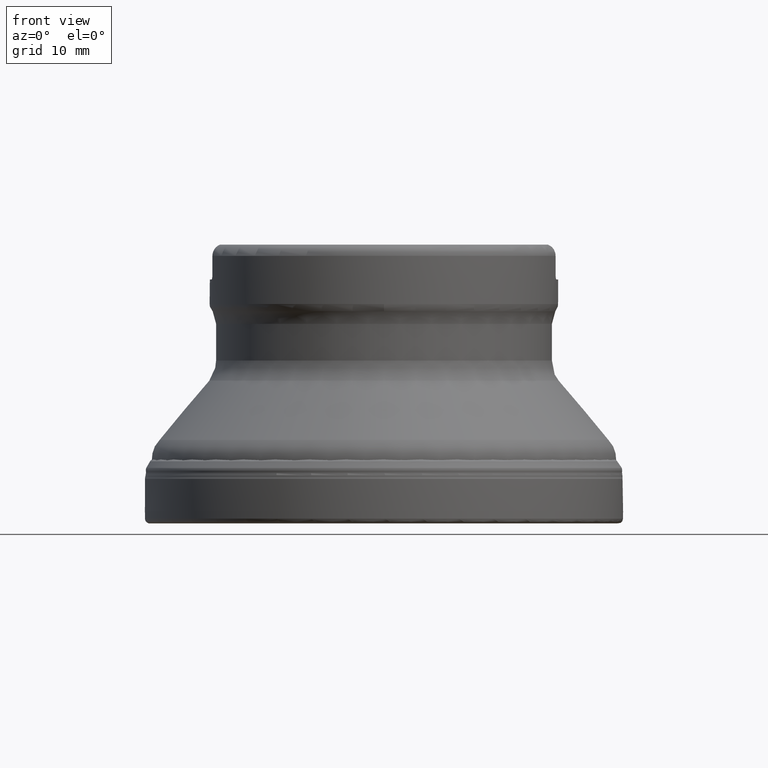
[diagram: clean part render]
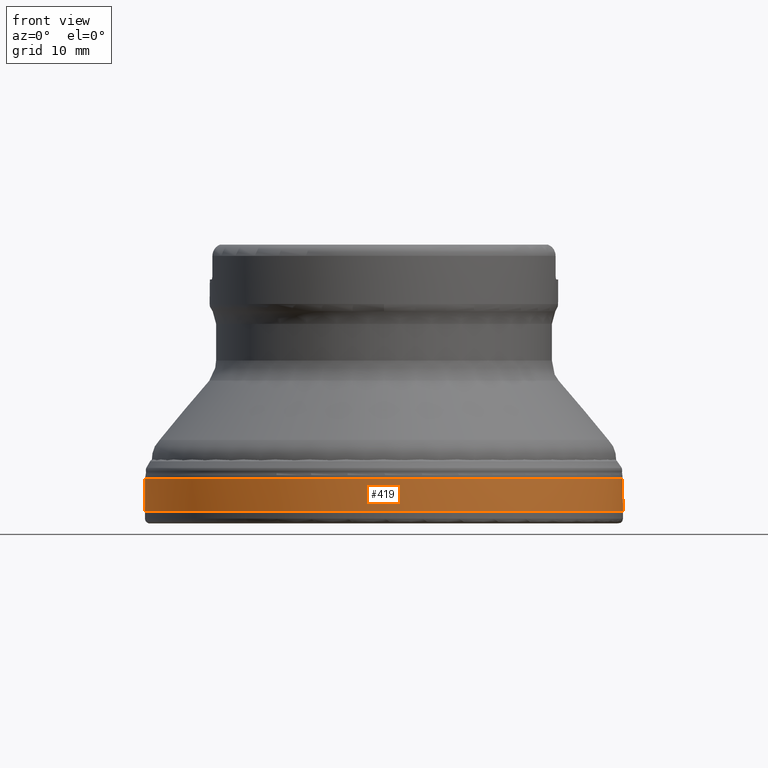
[diagram: same view with one face highlighted and labeled with its STEP entity id]
A machine part, front view. The second image highlights one B-rep face of the part: STEP entity #419.
In plain terms, the highlighted face is a SurfaceOfRevolution surface.
Its self-contained STEP definition (entity closure, byte-faithful):
#114=SURFACE_OF_REVOLUTION('',#1178,#138);
#138=AXIS1_PLACEMENT('',#2341,#1565);
#240=FACE_BOUND('',#568,.T.);
#241=FACE_BOUND('',#569,.T.);
#419=ADVANCED_FACE('',(#240,#241),#114,.F.);
#568=EDGE_LOOP('',(#873));
#569=EDGE_LOOP('',(#874));
#653=CIRCLE('',#1300,38.0999999999999);
#654=CIRCLE('',#1301,38.1143761820818);
#873=ORIENTED_EDGE('',*,*,#1107,.T.);
#874=ORIENTED_EDGE('',*,*,#1108,.F.);
#988=VERTEX_POINT('',#2326);
#989=VERTEX_POINT('',#2334);
#1107=EDGE_CURVE('',#988,#988,#653,.T.);
#1108=EDGE_CURVE('',#989,#989,#654,.T.);
#1178=B_SPLINE_CURVE_WITH_KNOTS('',5,(#2335,#2336,#2337,#2338,#2339,#2340),
 .UNSPECIFIED.,.F.,.F.,(6,6),(0.,1.),.UNSPECIFIED.);
#1300=AXIS2_PLACEMENT_3D('',#2325,#1560,#1561);
#1301=AXIS2_PLACEMENT_3D('',#2333,#1563,#1564);
#1560=DIRECTION('',(0.,0.,-1.));
#1561=DIRECTION('',(-1.,0.,0.));
#1563=DIRECTION('',(0.,0.,-1.));
#1564=DIRECTION('',(-1.,0.,0.));
#1565=DIRECTION('',(0.,0.,-1.));
#2325=CARTESIAN_POINT('',(0.,0.,7.12956620558486));
#2326=CARTESIAN_POINT('',(-38.0999999999999,0.,7.12956620558486));
#2333=CARTESIAN_POINT('',(0.,0.,1.90738317009832));
#2334=CARTESIAN_POINT('',(-38.1143761820818,0.,1.90738317009832));
#2335=CARTESIAN_POINT('',(37.9226125228729,-3.81852458195027,1.90738317127625));
#2336=CARTESIAN_POINT('',(37.9600928337852,-3.53872882155154,2.95140919602121));
#2337=CARTESIAN_POINT('',(37.9888547645613,-3.25887011172212,3.99573167627597));
#2338=CARTESIAN_POINT('',(38.0089459643438,-2.97897347494825,5.04025755140075));
#2339=CARTESIAN_POINT('',(38.0203766679349,-2.6990625641305,6.08489913935155));
#2340=CARTESIAN_POINT('',(38.0231200225426,-2.41916178692447,7.12956620558486));
#2341=CARTESIAN_POINT('',(0.,0.,0.));